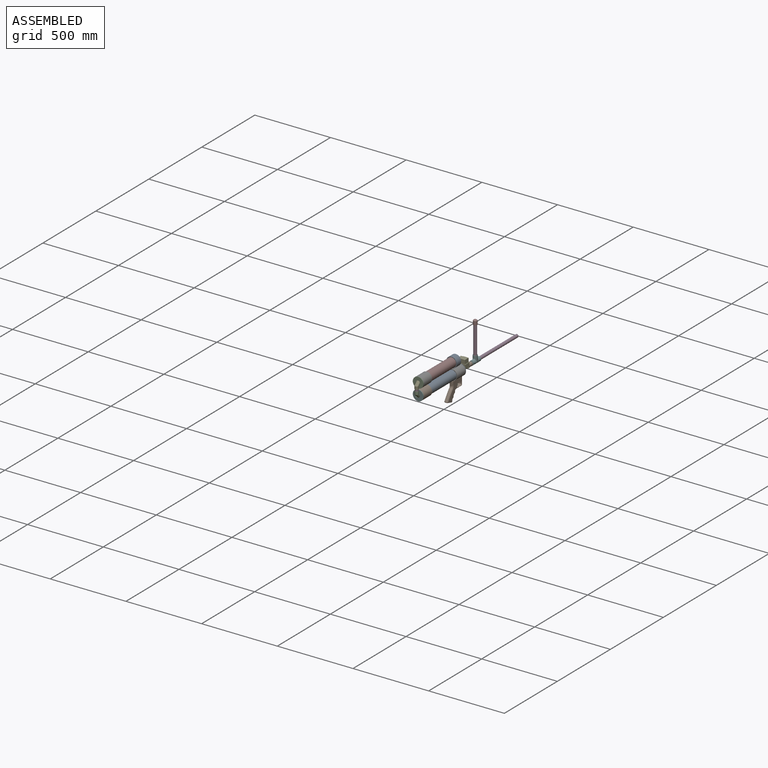
[diagram: assembled view]
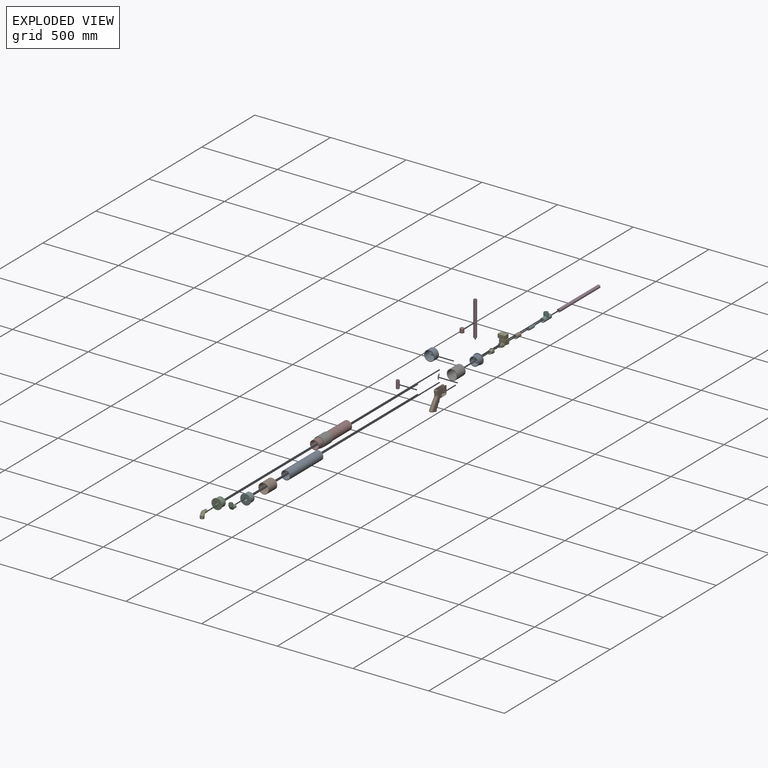
[diagram: exploded view]
GUIDED TOUR — MATED ASSEMBLY WITH SUBASSEMBLIES (Onshape document 58dd89611a7a290f81dffc46, AutoMate assembly 58dd89611a7a290f81dffc46_14fd3d186b81d240e03e2651_4bc097a1789fc63d27f42b45_default)

This assembly has 25 component occurrences arranged in 22 top-level units: 21 individual components plus 1 subassembly (S0). The tour has two levels: first the top level, where each subassembly is treated as one rigid unit; then each subassembly is toured internally in its own section (nesting deeper than one subassembly level is flattened into its subassembly's section).

Components are labeled P0..P24 across the whole record; subassembly units are labeled S0..S0. A mate is a constraint between two units; its type names the relative motion it leaves free:
  FASTENED — locks the two components together rigidly (no relative motion),
  PLANAR — leaves sliding in the plane through the listed point (normal = the listed direction) and rotation about that normal free,
  REVOLUTE — leaves rotation about the listed axis free (a hinge).
Axis/direction vectors are unit vectors and 'through' points are millimeter coordinates, both in the assembly's world frame.

TOP-LEVEL MATES (between units; each subassembly's internal mates are listed in its own section)
  1. FASTENED "Valve Coupler Fastener": P20 <-> S0, direction (0.000, -1.000, 0.000) through (-5.48, 219.71, -12.74) mm
  2. FASTENED "Coupler Fasten": P10 <-> P9, direction (0.000, 1.000, 0.000) through (-5.48, -190.03, -12.74) mm
  3. FASTENED "1/2" Reducer Fasten": P5 <-> P10, direction (0.000, 1.000, 0.000) through (-5.48, -232.09, -12.74) mm
  4. FASTENED "Bottom Elbow Tank Fastener": P21 <-> P5, direction (0.000, 1.000, 0.000) through (-5.48, -235.90, -12.74) mm
  5. FASTENED "Main Grip Fasten": P1 <-> P6, direction (0.000, 1.000, 0.000) through (4.52, 163.19, -44.74) mm
  6. FASTENED "Rear Cap Fasten": P19 <-> P8, direction (0.000, 1.000, 0.000) through (-5.48, 121.12, 63.46) mm
  7. FASTENED "Barrel1 Tee Fastener": P24 <-> P15, direction (0.000, 1.000, 0.000) through (-5.48, 289.56, -12.74) mm
  8. FASTENED "Tank Connector Fastener": P12 <-> P23, direction (0.000, 0.000, 1.000) through (-5.48, -248.60, 50.76) mm
  9. FASTENED "1/2" Reducer Fasten": P2 <-> P16, direction (0.000, 1.000, 0.000) through (-5.48, -232.09, 63.46) mm
  10. FASTENED "Top Elbow Tank Fastener": P23 <-> P2, direction (0.000, 1.000, 0.000) through (-5.48, -235.90, 63.46) mm
  11. FASTENED "Lower Tank Front Coupler Fasten": P9 <-> P6, direction (0.000, -1.000, 0.000) through (-5.48, 121.12, -12.74) mm
  12. FASTENED "Mag Tee Fastener": P3 <-> P15, direction (0.000, 0.000, -1.000) through (-5.48, 303.53, 1.55) mm
  13. FASTENED "2-3/4 Reducer Fasten": P0 <-> P6, direction (0.000, -1.000, 0.000) through (-5.48, 163.19, -12.74) mm
  14. FASTENED "Valve Tank Fastener": S0 <-> P13, direction (0.000, -1.000, 0.000) through (-5.48, 170.81, -12.74) mm
  15. FASTENED "3/4" reducer tank fastener": P13 <-> P0, direction (0.000, -1.000, 0.000) through (-5.48, 167.00, -12.74) mm
  16. FASTENED "Barrel2 Tee Fastener": P15 <-> P22, direction (0.000, 1.000, 0.000) through (-5.48, 317.50, -12.74) mm
  17. FASTENED "Mag Cap Fastener": P18 <-> P3, direction (0.000, 0.000, 1.000) through (-5.48, 303.53, 230.15) mm
  18. REVOLUTE "Trigger Revolute": P11 <-> P1, axis (1.000, 0.000, 0.000) through (-2.73, 137.19, -70.35) mm
  19. FASTENED "Coupler Fasten": P16 <-> P8, direction (0.000, 1.000, 0.000) through (-5.48, -190.03, 63.46) mm
  20. FASTENED "Barrel Coupler Fastener": P24 <-> P20, direction (0.000, -1.000, 0.000) through (-5.48, 238.76, -12.74) mm

TOP-LEVEL ASSEMBLY ORDER
  1. P6 — the base component [order heuristic]
  2. P0 — core [order heuristic]
  3. P2 — core [order heuristic]
  4. P23 — core [order heuristic]
  5. P13 — core [order heuristic]
  6. P12 — core [order heuristic]
  7. P16 — core [order heuristic]
  8. P8 — core [order heuristic]
  9. S0 — core [order heuristic]
  10. P20 — core [order heuristic]
  11. P24 — core [order heuristic]
  12. P9 — core [order heuristic]
  13. P15 — core [order heuristic]
  14. P10 — core [order heuristic]
  15. P5 — core [order heuristic]
  16. P21 — core [order heuristic]
  17. P1 [order verified]
  18. P11 [order verified]
  19. P3 [order verified]
  20. P19 [order verified]
  21. P18 [order verified]
  22. P22 [order verified]
(P11 verified with a relaxed clearance tolerance: the source model stores slight part interference there.)
Order-tag legend:
  [order verified] — this step's position reverses a verified removal order: the component was checked to insert without passing through the ones already placed.
  [order heuristic] — the first 16 components form the assembly's core: parts whose collision-free extraction could not be verified, listed in mate-graph order.

Of the 25 component occurrences, 5 carry the full construction recipe — the FeatureScript program that regenerates the part's solid from scratch; the rest are supplied as boundary geometry only. Each toured unit is shown spotlighted twice — assembled, then exploded with a leader line back to its socket (green = recipe-attached component, orange = geometry-only, blue = subassembly unit; the rest desaturated gray).
NOTE — this tour is split across 2 documents so each fits a 32k-token context. This is document 1: the component sections continue in the remaining 1 document, each repeating the header above.
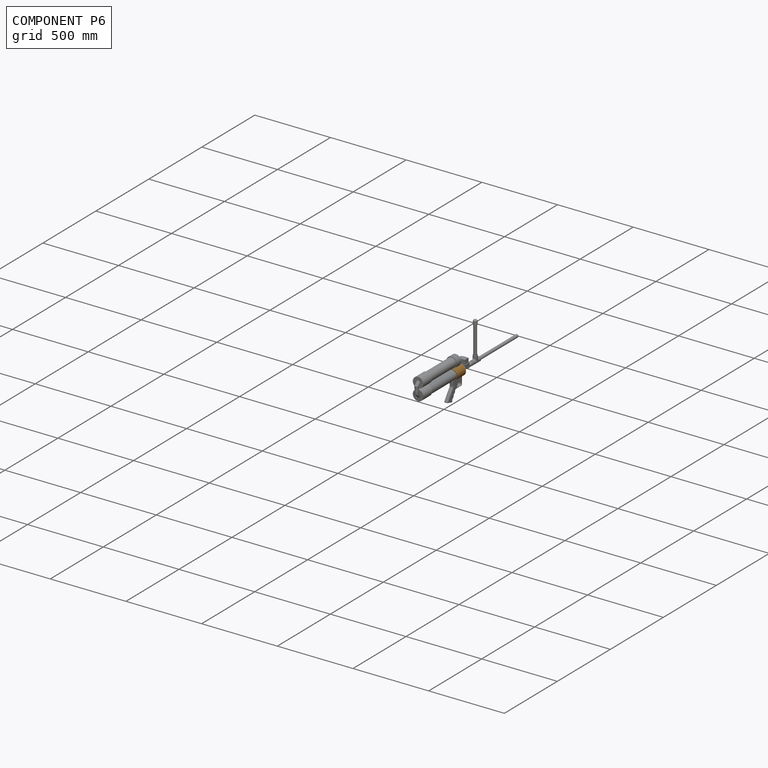
[diagram: component P6 — assembled]
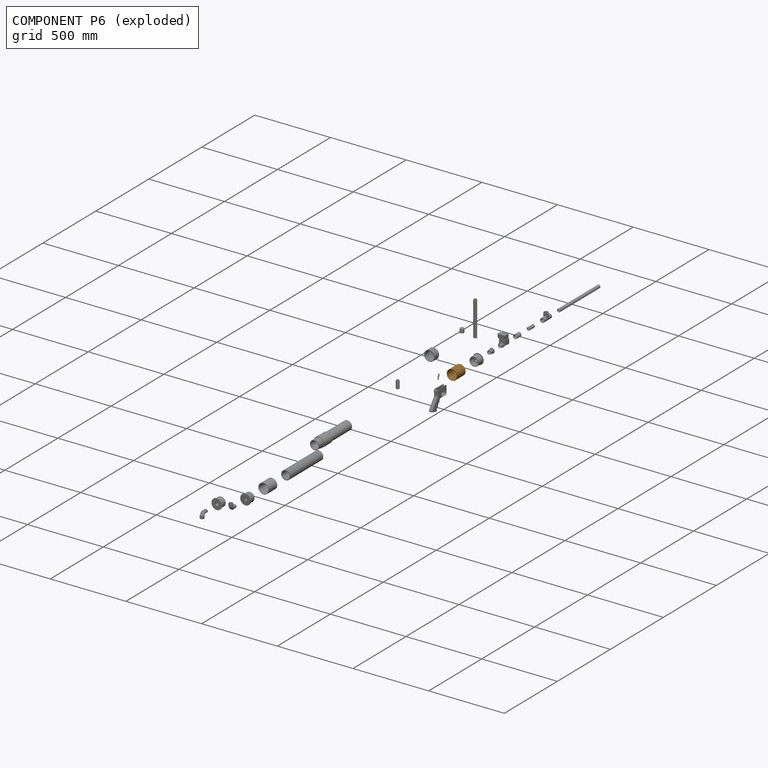
[diagram: component P6 — exploded]
COMPONENT P6 — geometry summary (no construction recipe available for this part):
  bounding box: 79.4 x 74.7 x 74.7 mm
  B-rep topology: 1 solid, 10 faces, 32 edges
  volume: 71558 mm^3 (16% of its bounding box)
  symmetry: 2-fold rotationally symmetric about the x axis; 2-fold rotationally symmetric about the y axis; revolution-symmetric about the z axis through its bounding-box center; mirror-symmetric across its x mid-plane, y mid-plane, z mid-plane
Held by: FASTENED mate "Main Grip Fasten" to P1; FASTENED mate "Lower Tank Front Coupler Fasten" to P9; FASTENED mate "2-3/4 Reducer Fasten" to P0.
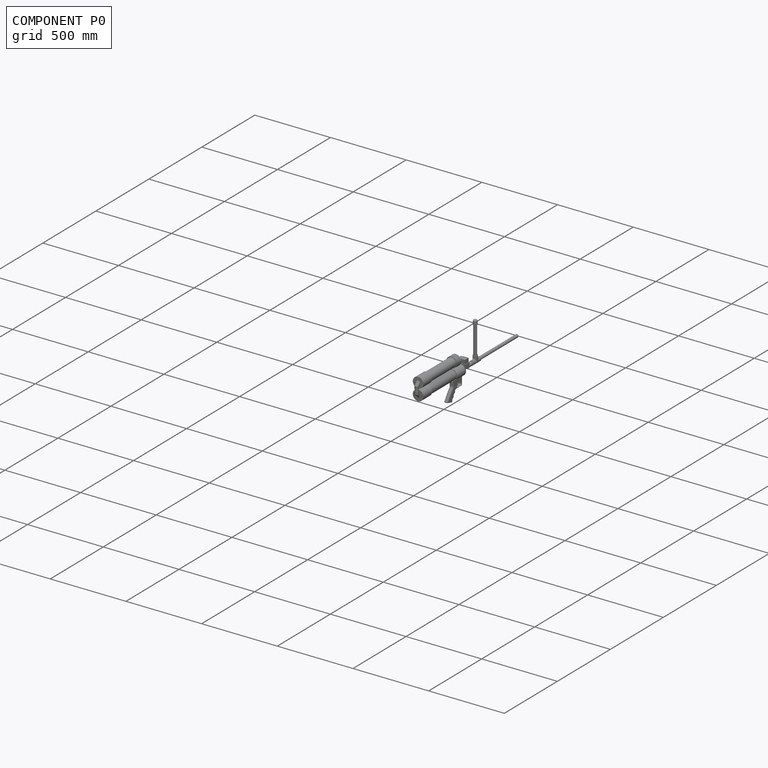
[diagram: component P0 — assembled]
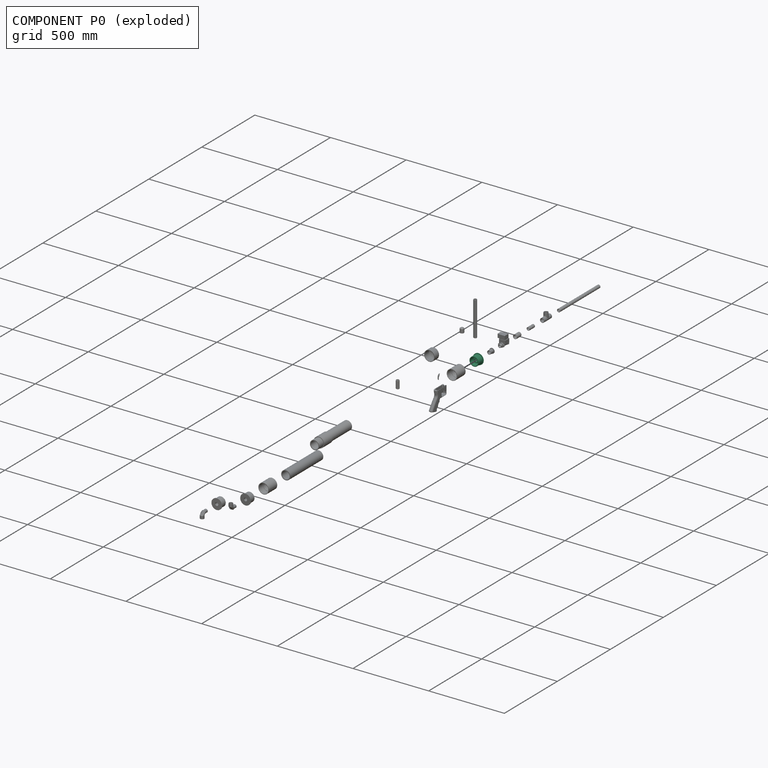
[diagram: component P0 — exploded]
COMPONENT P0 — recipe-attached (CADFS 00956761, mesh-verified: the recipe's output STEP matches this component's geometry to below the mesh-comparison resolution (tessellation chordal tolerance ~0.161 mm)).
Held by: FASTENED mate "2-3/4 Reducer Fasten" to P6; FASTENED mate "3/4" reducer tank fastener" to P13.
Construction recipe (FeatureScript — the CAD program that rebuilds this solid; sketch coordinates are in the units given by the * unit suffixes, e.g. mm):

FeatureScript 1511;
import(path : "onshape/std/geometry.fs", version : "1511.0");
import(path : "onshape/std/common.fs", version : "1511.0");
const mm = millimeter;
const VERTEX = EntityType.VERTEX;
const EDGE = EntityType.EDGE;
const FACE = EntityType.FACE;
const BODY = EntityType.BODY;
function v(x, y){return vector(x, y);}
function OD(order){return orderDisambiguation(order);}
function OSD(set){return originalSetDisambiguation(set);}
function TD(topology){return topologyDisambiguation(topology);}
function TDD(query){return trueDependencyDisambiguation(query);}
function sQuery(a, b, c) {return sketchEntityQuery(a, b, c);}

annotation { "Feature Type Name" : "Feature", "Feature Type Description" : "" }
export const myFeature = defineFeature(function(context is Context, id is Id, definition is map)
    precondition{}
    {
        {
            var Q0;
            Q0=qCreatedBy(makeId("Top.planeOp"),FACE);
            var sketch = newSketch(context, id + "F0", { "sketchPlane" : qUnion([Q0])});
            skCircle(sketch, "E0", {"center": v(0, 0) * mm, "radius": 34.93 * mm});
            skCircle(sketch, "E1", {"center": v(0, 0) * mm, "radius": 30.16 * mm});
            skCircle(sketch, "E2", {"center": v(0, 0) * mm, "radius": 25.4 * mm});
            skCircle(sketch, "E3", {"center": v(0, 0) * mm, "radius": 16.2 * mm});
            skCircle(sketch, "E4", {"center": v(0, 0) * mm, "radius": 9.53 * mm});
            skCircle(sketch, "E5", {"center": v(0, 0) * mm, "radius": 12.7 * mm});
            skLineSegment(sketch, "E6.left", {"start": v(2.22, 16.04) * mm, "end": v(2.22, 25.3) * mm});
            skLineSegment(sketch, "E6.right", {"start": v(-2.22, 16.04) * mm, "end": v(-2.22, 25.3) * mm});
            skPoint(sketch, "E6.middle", {"position": v(0, 20.67) * mm});
            skPoint(sketch, "E7.1.0", {"position": v(-17.9, -10.34) * mm});
            skLineSegment(sketch, "E7.1.1", {"start": v(-12.78, -9.94) * mm, "end": v(-20.8, -14.58) * mm});
            skLineSegment(sketch, "E7.1.2", {"start": v(-15, -6.1) * mm, "end": v(-23.02, -10.73) * mm});
            skPoint(sketch, "E7.2.0", {"position": v(17.9, -10.34) * mm});
            skLineSegment(sketch, "E7.2.1", {"start": v(15, -6.1) * mm, "end": v(23.02, -10.73) * mm});
            skLineSegment(sketch, "E7.2.2", {"start": v(12.78, -9.94) * mm, "end": v(20.8, -14.58) * mm});
            skSolve(sketch);
        }
        {
            var Q0;
            Q0=makeQuery(id+"F0.imprint","IMPRINT",FACE,{"disambiguationData":[TD([[makeQuery(id+"F0.imprint","IMPRINT",EDGE,{"derivedFrom":sQuery(id+"F0.wireOp",EDGE,"E0")}),1.0]])]});
            extrude(context, id + "F1", {"entities" : qUnion([Q0]), "depth" : 3.8 * mm});
        }
        {
            var Q0;
            Q0=makeQuery(id+"F0.imprint","IMPRINT",FACE,{"disambiguationData":[TD([[makeQuery(id+"F0.imprint","IMPRINT",EDGE,{"derivedFrom":sQuery(id+"F0.wireOp",EDGE,"E1")}),1.0]])]});
            extrude(context, id + "F2", {"entities" : qUnion([Q0]), "operationType" : NewBodyOperationType.ADD, "depth" : 41.9 * mm});
        }
        {
            var Q0;
            {var subQ0=sQuery(id+"F0.wireOp",EDGE,"E6.left");Q0=makeQuery(id+"F0.imprint","IMPRINT",FACE,{"disambiguationData":[TD([[makeQuery(id+"F0.imprint","IMPRINT",EDGE,{"derivedFrom":subQ0}),-1.0]])]});}
            var Q1;
            {var subQ0=sQuery(id+"F0.wireOp",EDGE,"E6.right");Q1=makeQuery(id+"F0.imprint","IMPRINT",FACE,{"disambiguationData":[TD([[makeQuery(id+"F0.imprint","IMPRINT",EDGE,{"derivedFrom":subQ0}),1.0]])]});}
            var Q2;
            {var subQ0=sQuery(id+"F0.wireOp",EDGE,"E7.1.1");Q2=makeQuery(id+"F0.imprint","IMPRINT",FACE,{"disambiguationData":[TD([[makeQuery(id+"F0.imprint","IMPRINT",EDGE,{"derivedFrom":subQ0}),1.0]])]});}
            extrude(context, id + "F3", {"entities" : qUnion([Q0, Q1, Q2]), "operationType" : NewBodyOperationType.ADD, "depth" : 3.8 * mm, "offsetDistance" : 25.4 * mm});
        }
        {
            var Q0;
            {var subQ0=sQuery(id+"F0.wireOp",EDGE,"E6.left");Q0=makeQuery(id+"F0.imprint","IMPRINT",FACE,{"disambiguationData":[TD([[makeQuery(id+"F0.imprint","IMPRINT",EDGE,{"derivedFrom":subQ0}),1.0]])]});}
            var Q1;
            {var subQ0=sQuery(id+"F0.wireOp",EDGE,"E7.2.1");Q1=makeQuery(id+"F0.imprint","IMPRINT",FACE,{"disambiguationData":[TD([[makeQuery(id+"F0.imprint","IMPRINT",EDGE,{"derivedFrom":subQ0}),-1.0]])]});}
            var Q2;
            {var subQ0=sQuery(id+"F0.wireOp",EDGE,"E7.1.1");Q2=makeQuery(id+"F0.imprint","IMPRINT",FACE,{"disambiguationData":[TD([[makeQuery(id+"F0.imprint","IMPRINT",EDGE,{"derivedFrom":subQ0}),-1.0]])]});}
            extrude(context, id + "F4", {"entities" : qUnion([Q0, Q1, Q2]), "operationType" : NewBodyOperationType.ADD, "depth" : 20.95 * mm, "offsetDistance" : 25.4 * mm});
        }
        {
            var Q0;
            Q0=makeQuery(id+"F0.imprint","IMPRINT",FACE,{"disambiguationData":[TD([[makeQuery(id+"F0.imprint","IMPRINT",EDGE,{"derivedFrom":sQuery(id+"F0.wireOp",EDGE,"E5")}),-1.0]])]});
            extrude(context, id + "F5", {"entities" : qUnion([Q0]), "operationType" : NewBodyOperationType.ADD, "depth" : 25.4 * mm});
        }
        {
            var Q0;
            Q0=makeQuery(id+"F0.imprint","IMPRINT",FACE,{"disambiguationData":[TD([[makeQuery(id+"F0.imprint","IMPRINT",EDGE,{"derivedFrom":sQuery(id+"F0.wireOp",EDGE,"E4")}),-1.0]])]});
            extrude(context, id + "F6", {"entities" : qUnion([Q0]), "operationType" : NewBodyOperationType.ADD, "depth" : 25.4 * mm, "offsetDistance" : 25.4 * mm});
        }
        {
            var Q0;
            Q0=makeQuery(id+"F0.imprint","IMPRINT",FACE,{"disambiguationData":[TD([[makeQuery(id+"F0.imprint","IMPRINT",EDGE,{"derivedFrom":sQuery(id+"F0.wireOp",EDGE,"E4")}),-1.0]])]});
            extrude(context, id + "F7", {"entities" : qUnion([Q0]), "operationType" : NewBodyOperationType.REMOVE, "depth" : 21.59 * mm});
        }
        {
            var Q0;
            Q0=makeQuery(id+"F5.opExtrude","CAP_EDGE",EDGE,{"disambiguationData":[OSD([sQuery(id+"F0.wireOp",EDGE,"E3")])],"isStart":false});
            var Q1;
            Q1=makeQuery(id+"F4.opExtrude","CAP_EDGE",EDGE,{"disambiguationData":[OSD([sQuery(id+"F0.wireOp",EDGE,"E6.right")])],"isStart":false});
            var Q2;
            Q2=makeQuery(id+"F4.opExtrude","CAP_EDGE",EDGE,{"disambiguationData":[OSD([sQuery(id+"F0.wireOp",EDGE,"E6.left")])],"isStart":false});
            var Q3;
            Q3=makeQuery(id+"F4.opExtrude","CAP_EDGE",EDGE,{"disambiguationData":[OSD([sQuery(id+"F0.wireOp",EDGE,"E7.1.1")])],"isStart":false});
            var Q4;
            Q4=makeQuery(id+"F4.opExtrude","CAP_EDGE",EDGE,{"disambiguationData":[OSD([sQuery(id+"F0.wireOp",EDGE,"E7.1.2")])],"isStart":false});
            var Q5;
            Q5=makeQuery(id+"F4.opExtrude","CAP_EDGE",EDGE,{"disambiguationData":[OSD([sQuery(id+"F0.wireOp",EDGE,"E7.2.1")])],"isStart":false});
            var Q6;
            Q6=makeQuery(id+"F4.opExtrude","CAP_EDGE",EDGE,{"disambiguationData":[OSD([sQuery(id+"F0.wireOp",EDGE,"E7.2.2")])],"isStart":false});
            fillet(context, id + "F8", {"entities" : qUnion([Q0, Q1, Q2, Q3, Q4, Q5, Q6]), "radius" : 2.54 * mm, "tangentPropagation" : true, "allowEdgeOverflow" : false});
        }
    });
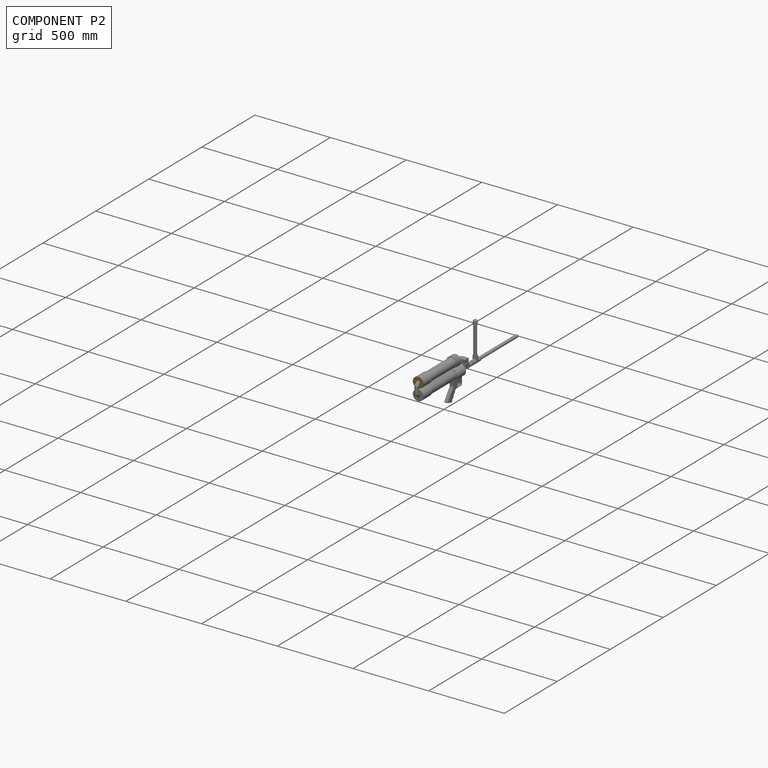
[diagram: component P2 — assembled]
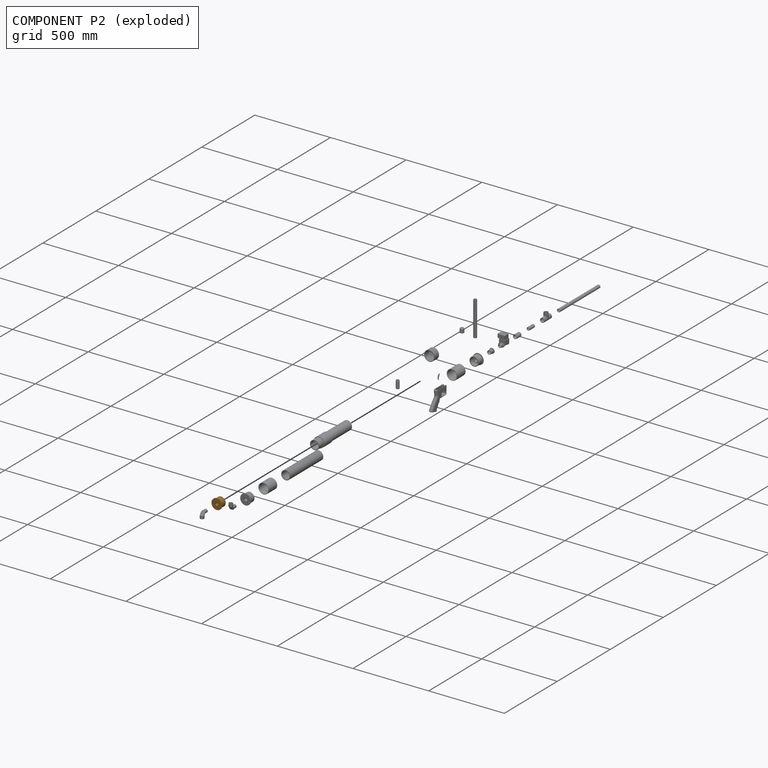
[diagram: component P2 — exploded]
COMPONENT P2 — geometry summary (no construction recipe available for this part):
  bounding box: 69.9 x 69.9 x 41.9 mm
  B-rep topology: 1 solid, 27 faces, 130 edges
  volume: 54525 mm^3 (27% of its bounding box)
  symmetry: 3-fold rotationally symmetric about the z axis; mirror-symmetric across its x mid-plane
Held by: FASTENED mate "1/2" Reducer Fasten" to P16; FASTENED mate "Top Elbow Tank Fastener" to P23.
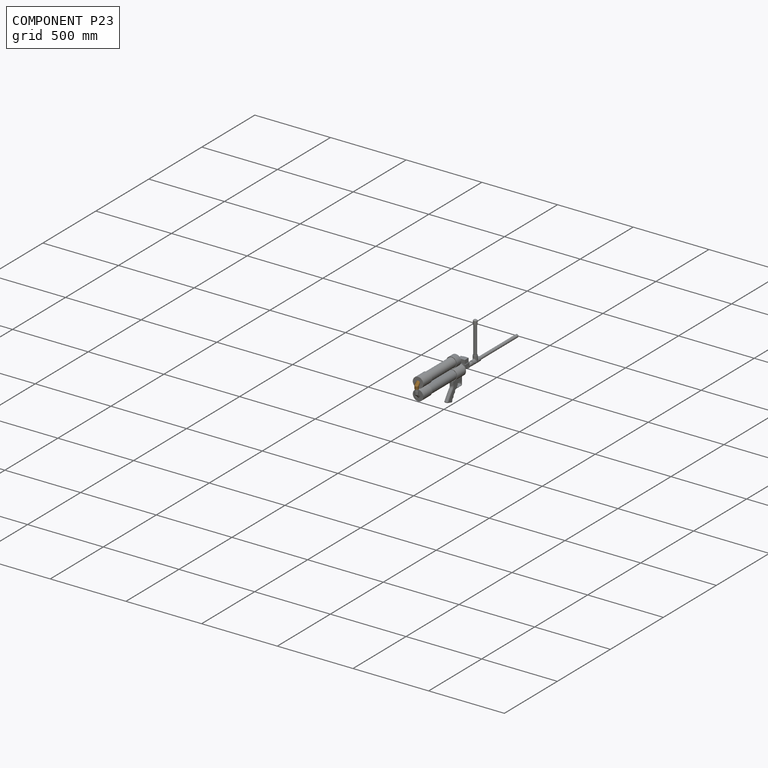
[diagram: component P23 — assembled]
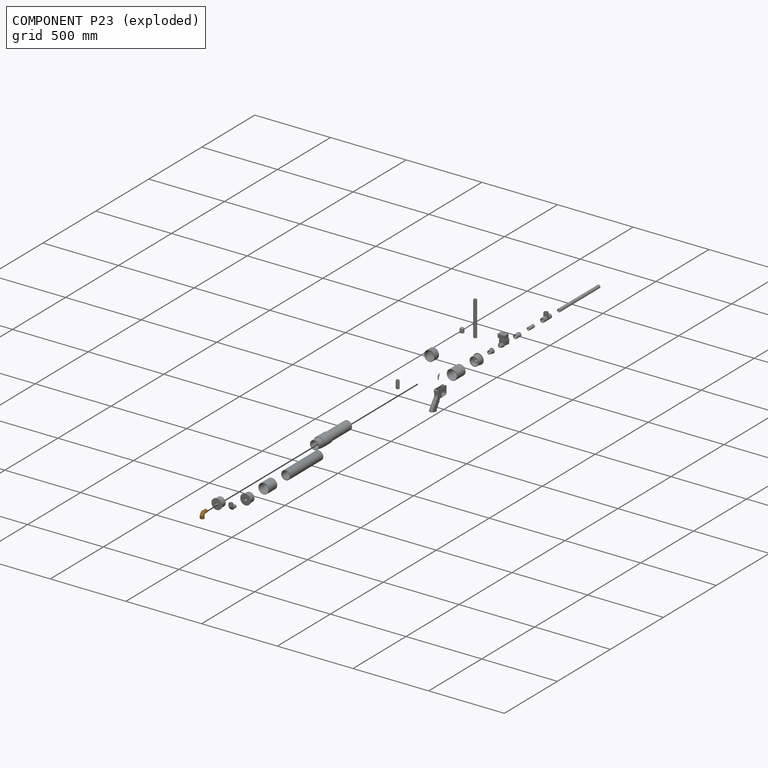
[diagram: component P23 — exploded]
COMPONENT P23 — geometry summary (no construction recipe available for this part):
  bounding box: 52.9 x 46.5 x 25.4 mm
  B-rep topology: 1 solid, 11 faces, 36 edges
  volume: 11736 mm^3 (19% of its bounding box)
  symmetry: mirror-symmetric across its y mid-plane
Held by: FASTENED mate "Tank Connector Fastener" to P12; FASTENED mate "Top Elbow Tank Fastener" to P2.
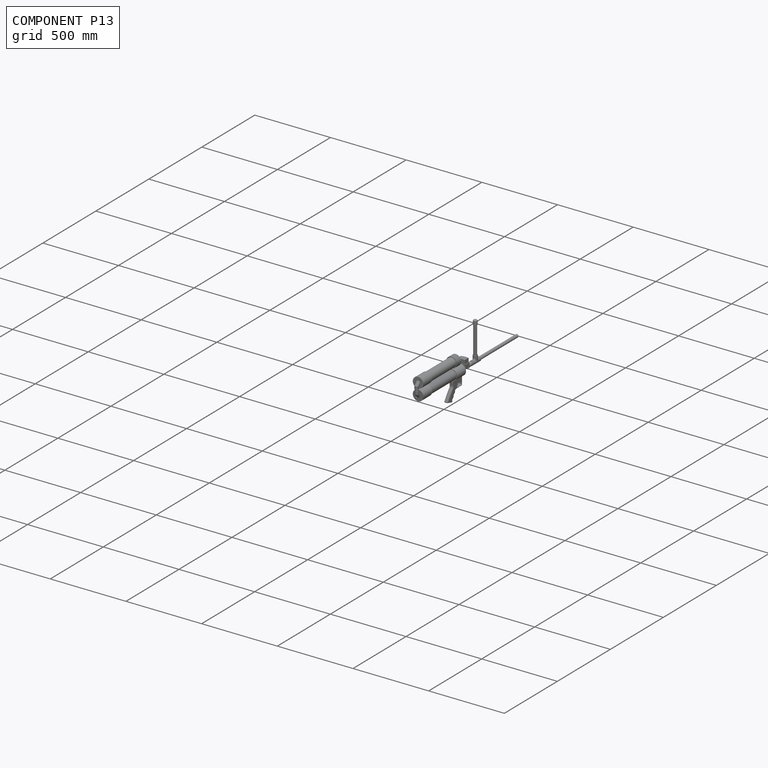
[diagram: component P13 — assembled]
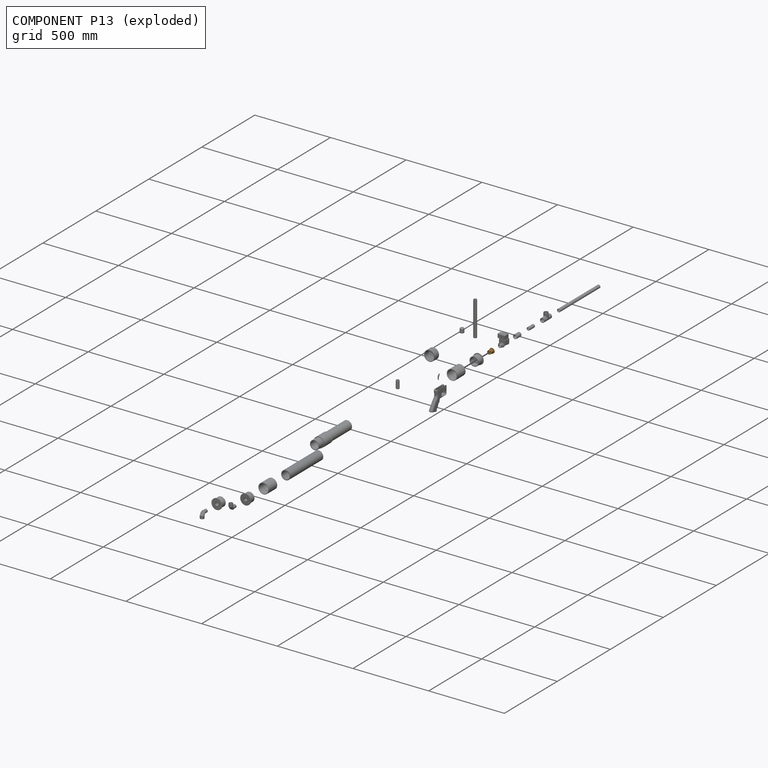
[diagram: component P13 — exploded]
COMPONENT P13 — geometry summary (no construction recipe available for this part):
  bounding box: 33.3 x 33.3 x 29.2 mm
  B-rep topology: 1 solid, 6 faces, 18 edges
  volume: 5502 mm^3 (17% of its bounding box)
  symmetry: revolution-symmetric about the z axis through its bounding-box center; mirror-symmetric across its x mid-plane, y mid-plane
Held by: FASTENED mate "Valve Tank Fastener" to P4; FASTENED mate "3/4" reducer tank fastener" to P0.
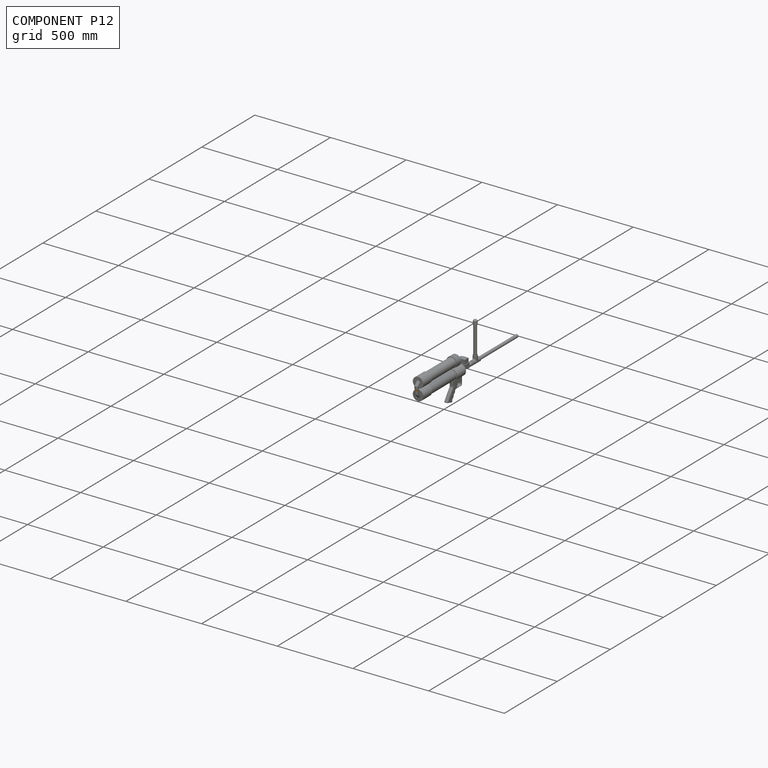
[diagram: component P12 — assembled]
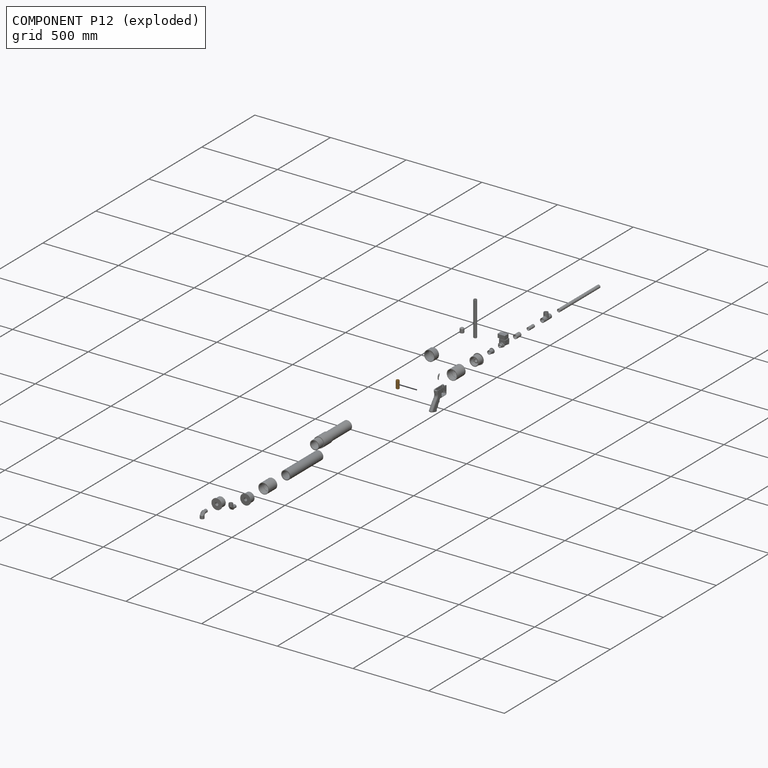
[diagram: component P12 — exploded]
COMPONENT P12 — geometry summary (no construction recipe available for this part):
  bounding box: 50.8 x 21.0 x 21.0 mm
  B-rep topology: 1 solid, 6 faces, 20 edges
  volume: 8533 mm^3 (38% of its bounding box)
  symmetry: 2-fold rotationally symmetric about the x axis; 2-fold rotationally symmetric about the y axis; revolution-symmetric about the z axis through its bounding-box center; mirror-symmetric across its x mid-plane, y mid-plane, z mid-plane
Held by: FASTENED mate "Tank Connector Fastener" to P23.
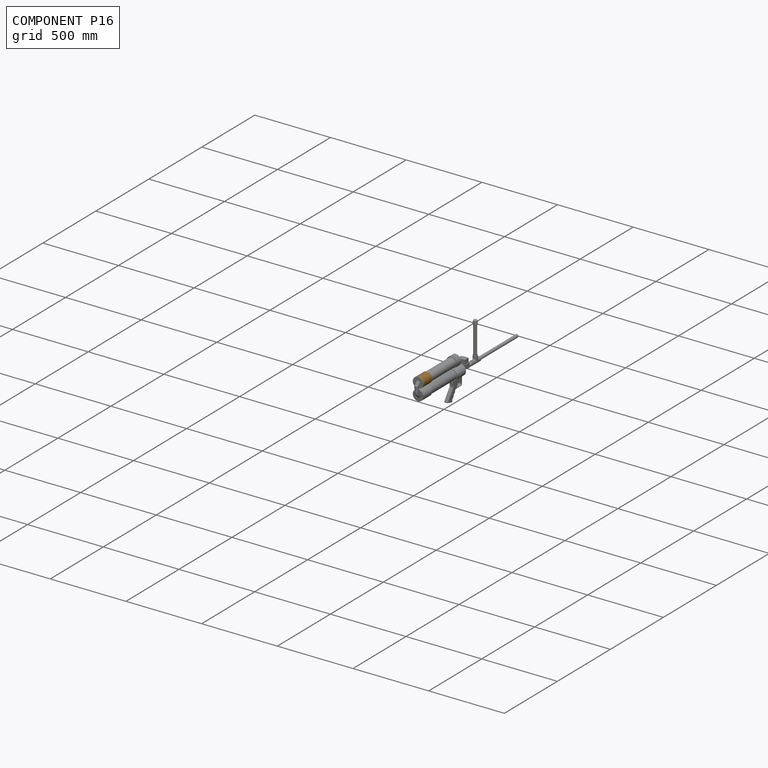
[diagram: component P16 — assembled]
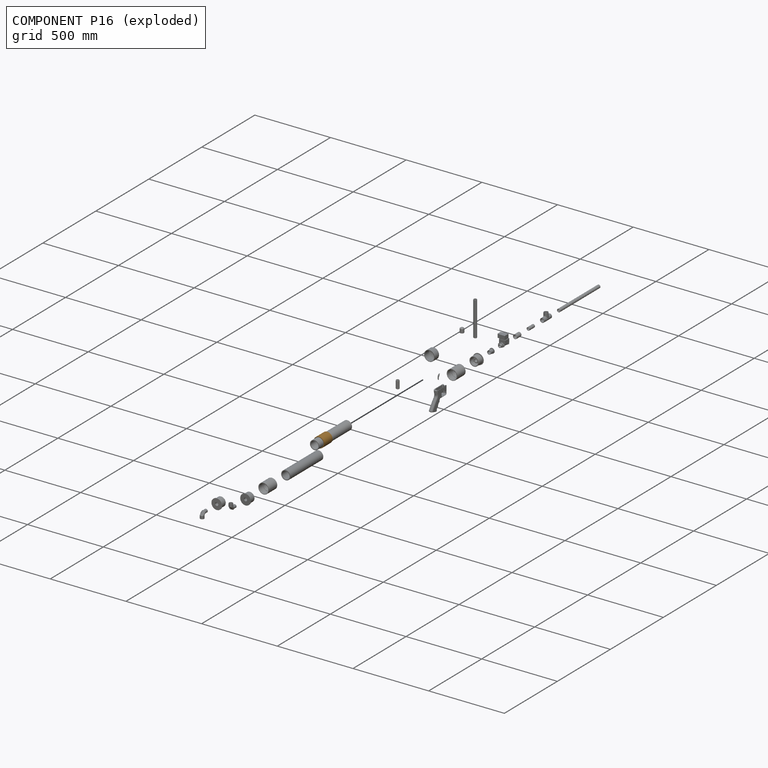
[diagram: component P16 — exploded]
COMPONENT P16 — geometry summary (no construction recipe available for this part):
  bounding box: 79.4 x 74.7 x 74.7 mm
  B-rep topology: 1 solid, 10 faces, 32 edges
  volume: 71558 mm^3 (16% of its bounding box)
  symmetry: 2-fold rotationally symmetric about the x axis; 2-fold rotationally symmetric about the y axis; revolution-symmetric about the z axis through its bounding-box center; mirror-symmetric across its x mid-plane, y mid-plane, z mid-plane
Held by: FASTENED mate "1/2" Reducer Fasten" to P2; FASTENED mate "Coupler Fasten" to P8.
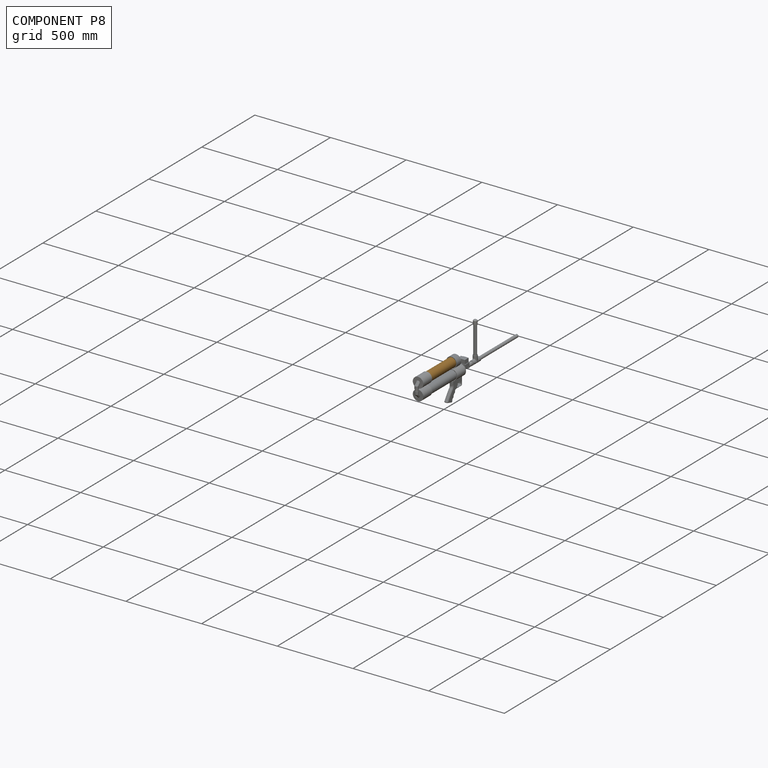
[diagram: component P8 — assembled]
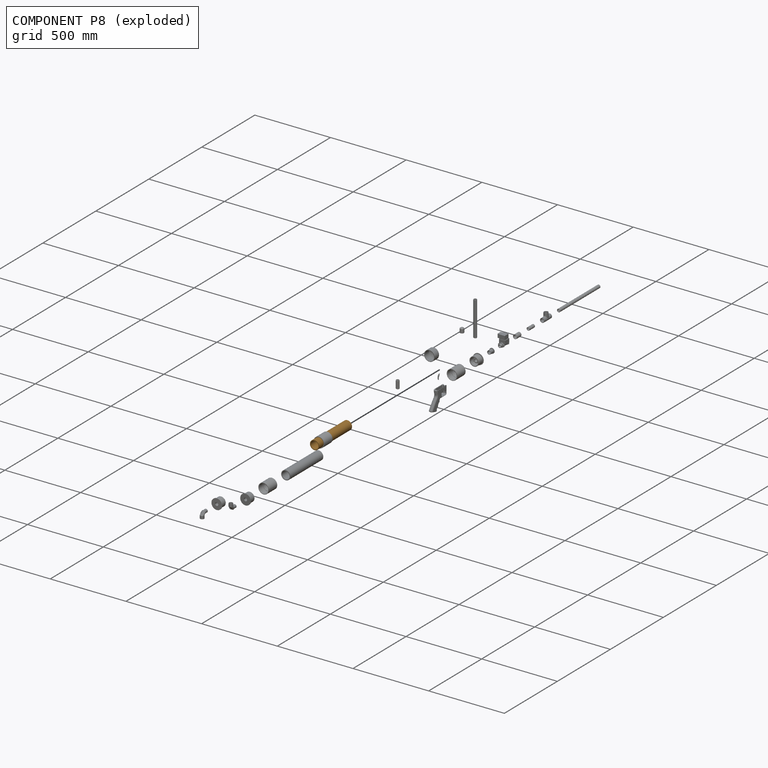
[diagram: component P8 — exploded]
COMPONENT P8 — geometry summary (no construction recipe available for this part):
  bounding box: 311.2 x 60.3 x 60.3 mm
  B-rep topology: 1 solid, 4 faces, 12 edges
  volume: 258664 mm^3 (23% of its bounding box)
  symmetry: 2-fold rotationally symmetric about the x axis; 2-fold rotationally symmetric about the y axis; revolution-symmetric about the z axis through its bounding-box center; mirror-symmetric across its x mid-plane, y mid-plane, z mid-plane
Held by: FASTENED mate "Rear Cap Fasten" to P19; FASTENED mate "Coupler Fasten" to P16.
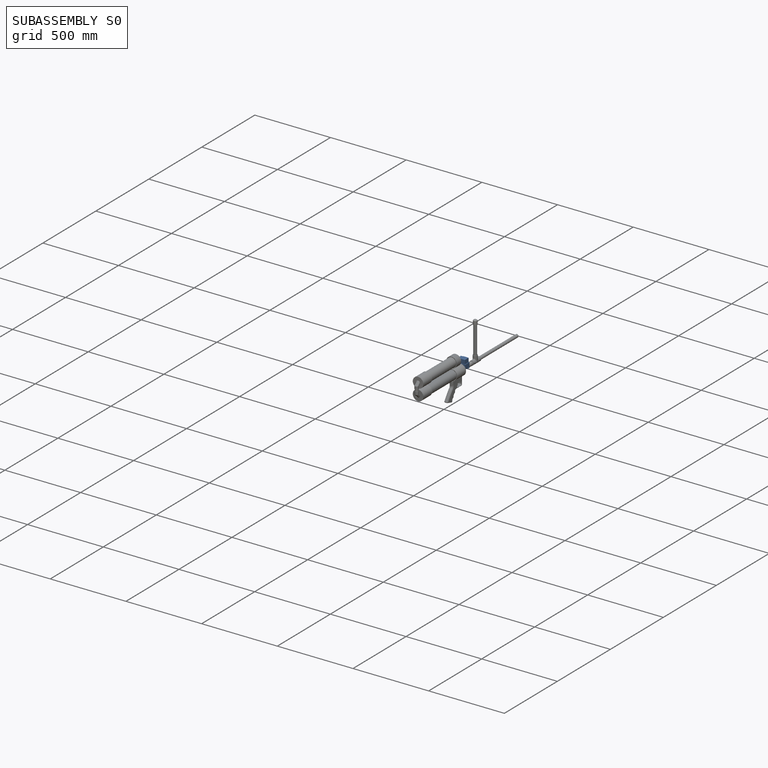
[diagram: subassembly S0 — assembled]
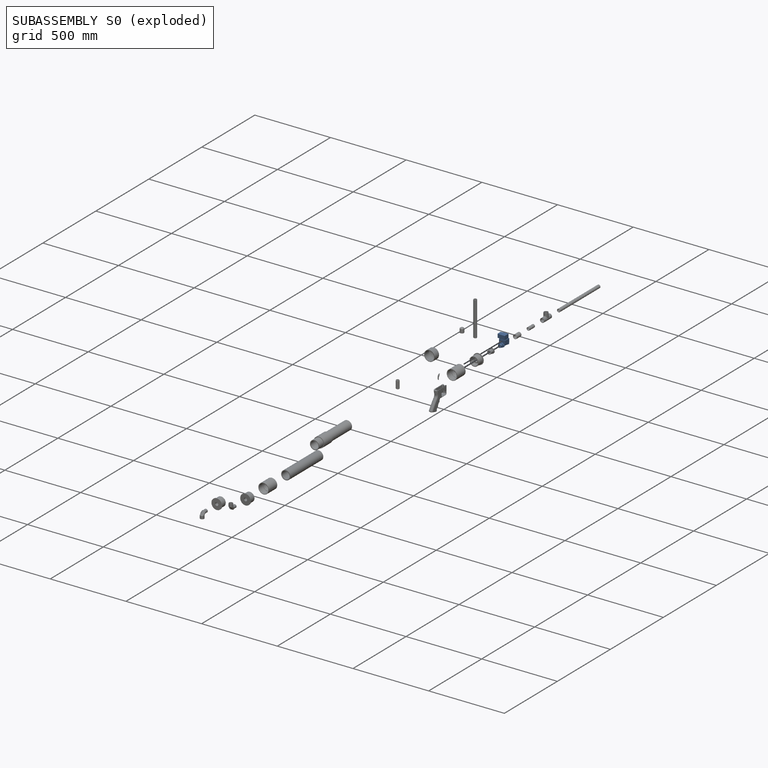
[diagram: subassembly S0 — exploded]
SUBASSEMBLY S0 — 4 components (P4, P7, P14, P17), of which 0 recipe-attached; toured below.
Held by: FASTENED mate "Valve Coupler Fastener" to P20; FASTENED mate "Valve Tank Fastener" to P13.
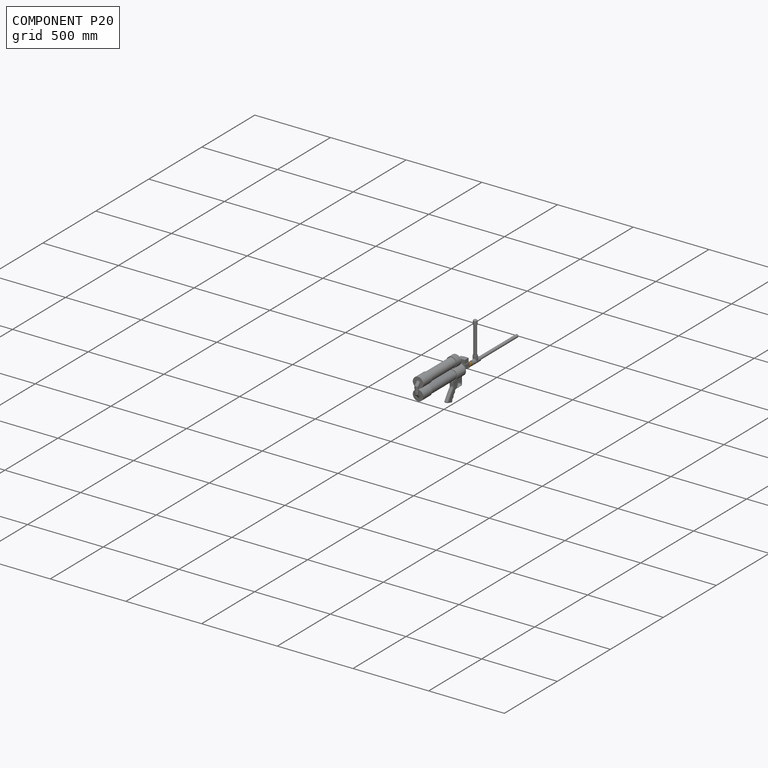
[diagram: component P20 — assembled]
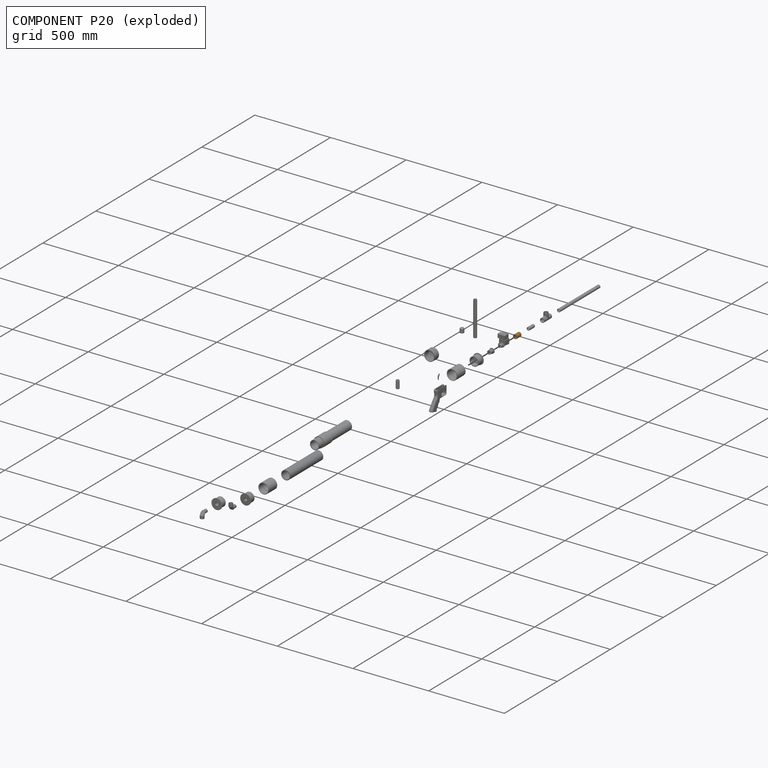
[diagram: component P20 — exploded]
COMPONENT P20 — geometry summary (no construction recipe available for this part):
  bounding box: 41.3 x 28.1 x 28.1 mm
  B-rep topology: 1 solid, 12 faces, 40 edges
  volume: 9344 mm^3 (29% of its bounding box)
  symmetry: revolution-symmetric about the z axis through its bounding-box center; mirror-symmetric across its x mid-plane, y mid-plane
Held by: FASTENED mate "Valve Coupler Fastener" to P4; FASTENED mate "Barrel Coupler Fastener" to P24.
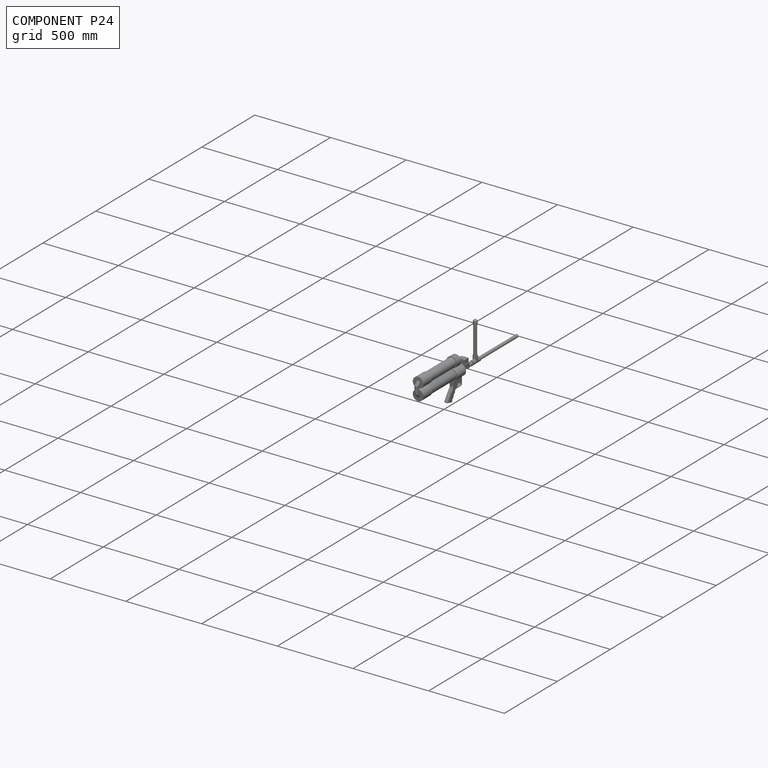
[diagram: component P24 — assembled]
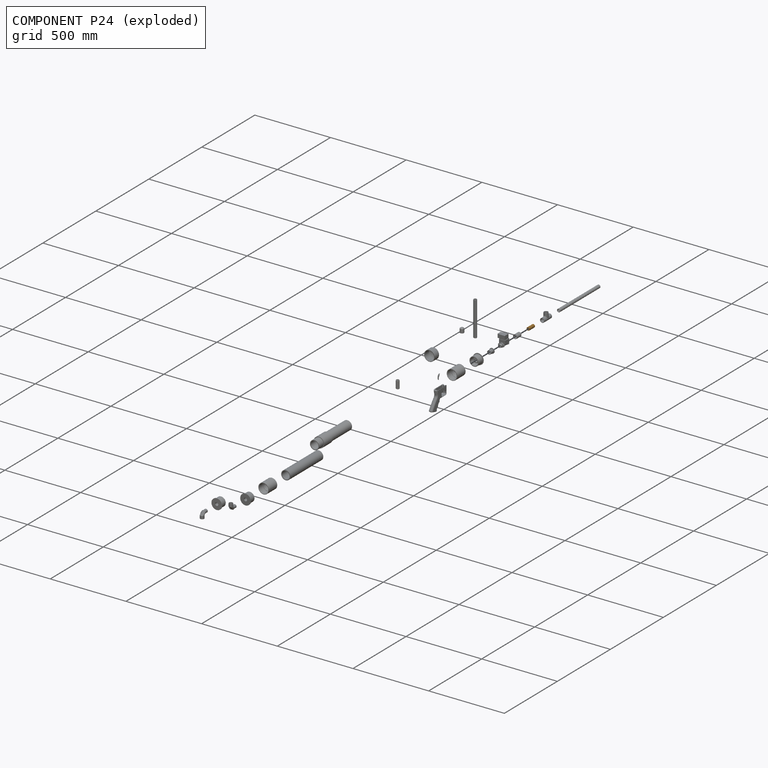
[diagram: component P24 — exploded]
COMPONENT P24 — geometry summary (no construction recipe available for this part):
  bounding box: 50.8 x 21.0 x 21.0 mm
  B-rep topology: 1 solid, 6 faces, 20 edges
  volume: 8533 mm^3 (38% of its bounding box)
  symmetry: 2-fold rotationally symmetric about the x axis; 2-fold rotationally symmetric about the y axis; revolution-symmetric about the z axis through its bounding-box center; mirror-symmetric across its x mid-plane, y mid-plane, z mid-plane
Held by: FASTENED mate "Barrel1 Tee Fastener" to P15; FASTENED mate "Barrel Coupler Fastener" to P20.
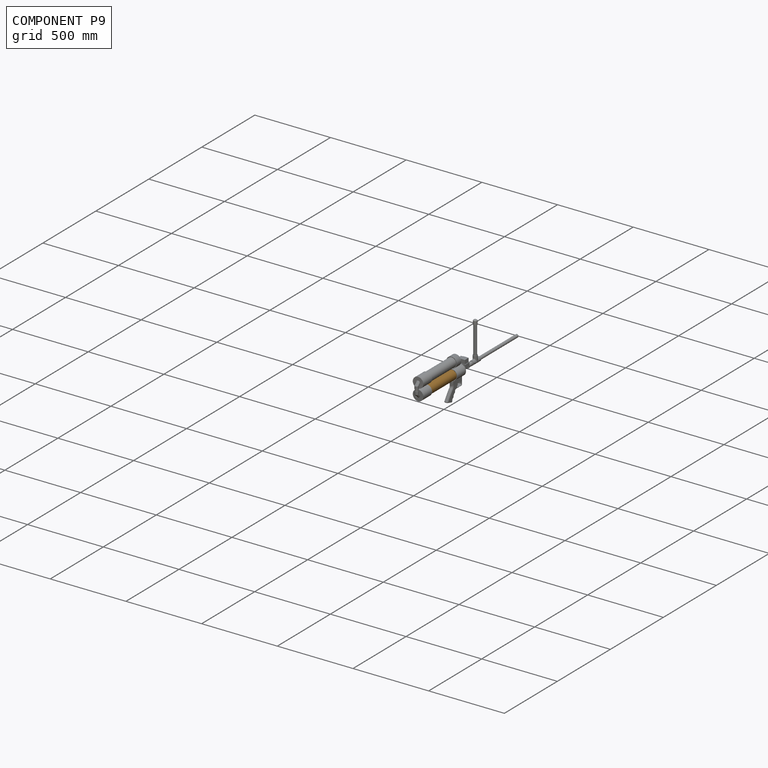
[diagram: component P9 — assembled]
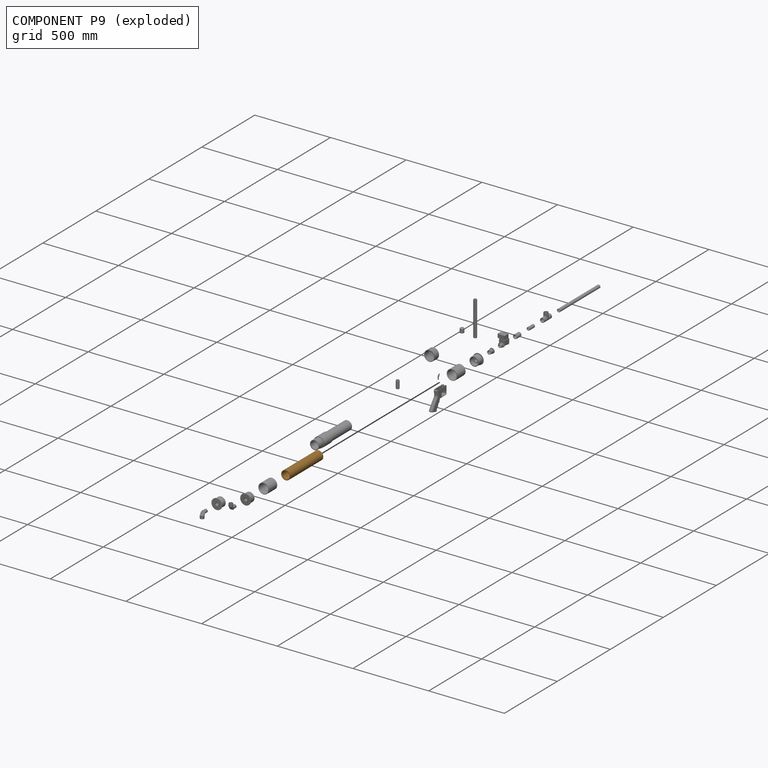
[diagram: component P9 — exploded]
COMPONENT P9 — geometry summary (no construction recipe available for this part):
  bounding box: 311.2 x 60.3 x 60.3 mm
  B-rep topology: 1 solid, 4 faces, 12 edges
  volume: 258664 mm^3 (23% of its bounding box)
  symmetry: 2-fold rotationally symmetric about the x axis; 2-fold rotationally symmetric about the y axis; revolution-symmetric about the z axis through its bounding-box center; mirror-symmetric across its x mid-plane, y mid-plane, z mid-plane
Held by: FASTENED mate "Coupler Fasten" to P10; FASTENED mate "Lower Tank Front Coupler Fasten" to P6.
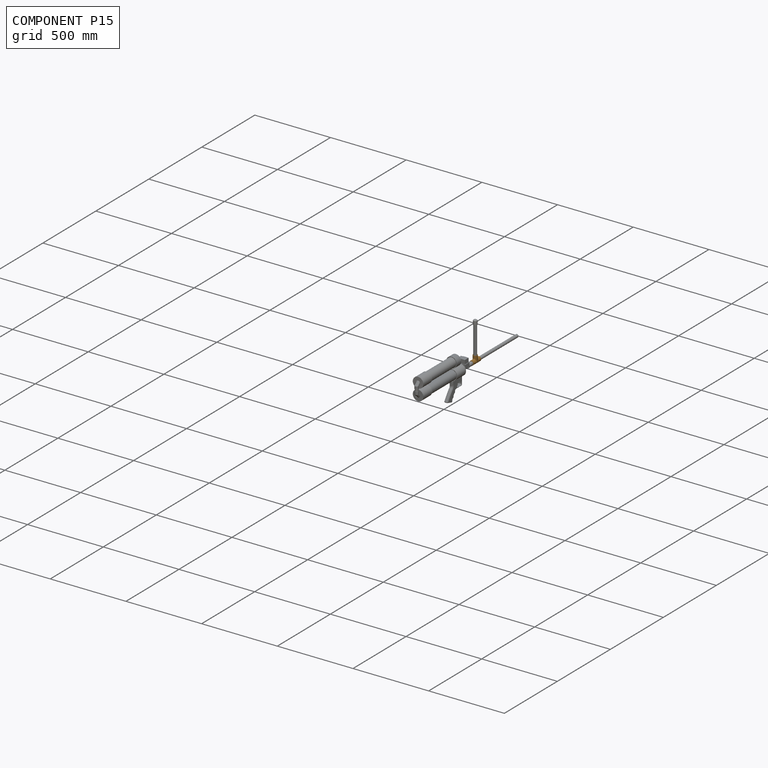
[diagram: component P15 — assembled]
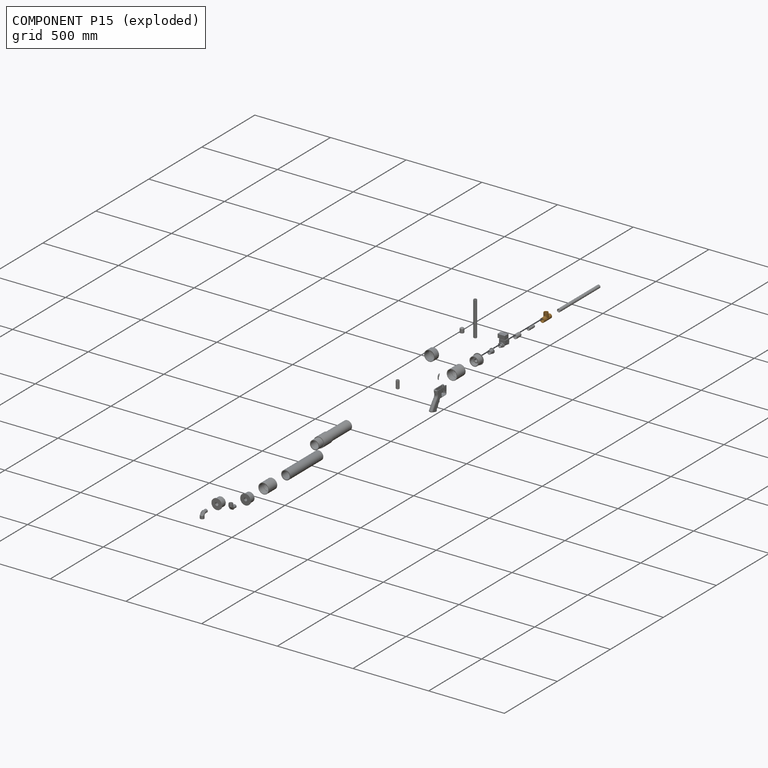
[diagram: component P15 — exploded]
COMPONENT P15 — geometry summary (no construction recipe available for this part):
  bounding box: 72.4 x 50.8 x 28.6 mm
  B-rep topology: 1 solid, 20 faces, 94 edges
  volume: 27988 mm^3 (27% of its bounding box)
Held by: FASTENED mate "Barrel1 Tee Fastener" to P24; FASTENED mate "Mag Tee Fastener" to P3; FASTENED mate "Barrel2 Tee Fastener" to P22.
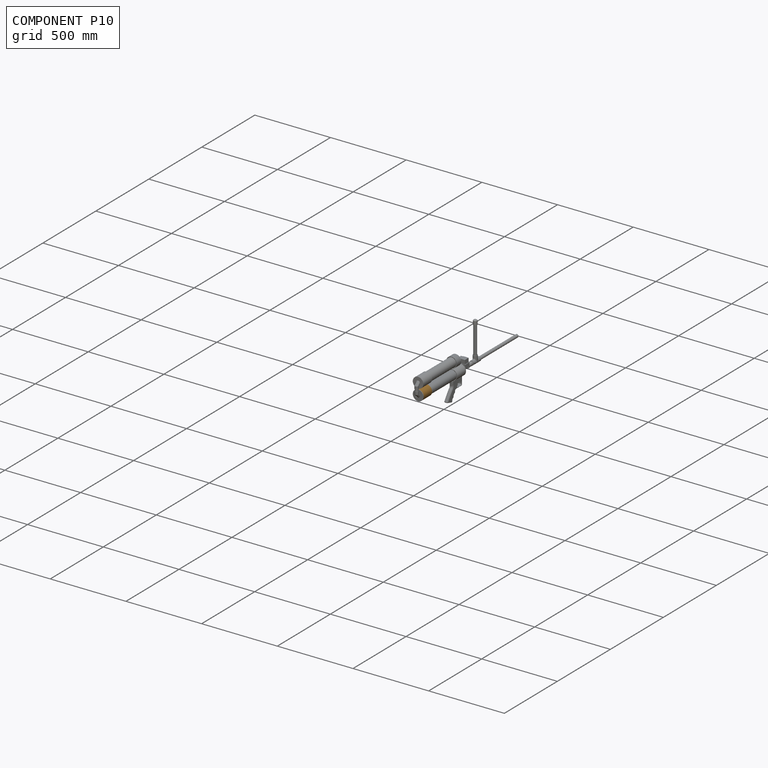
[diagram: component P10 — assembled]
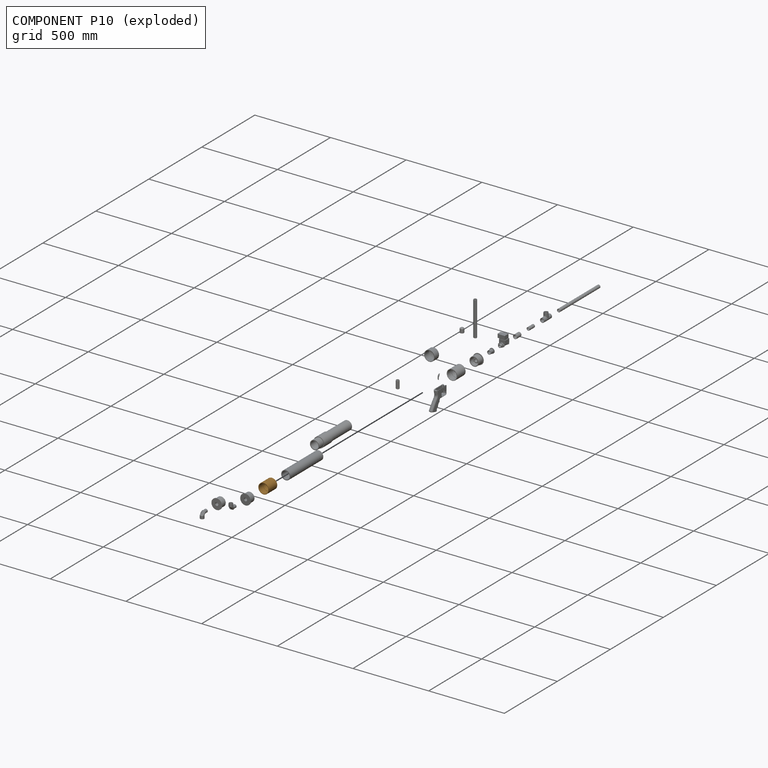
[diagram: component P10 — exploded]
COMPONENT P10 — geometry summary (no construction recipe available for this part):
  bounding box: 79.4 x 74.7 x 74.7 mm
  B-rep topology: 1 solid, 10 faces, 32 edges
  volume: 71558 mm^3 (16% of its bounding box)
  symmetry: 2-fold rotationally symmetric about the x axis; 2-fold rotationally symmetric about the y axis; revolution-symmetric about the z axis through its bounding-box center; mirror-symmetric across its x mid-plane, y mid-plane, z mid-plane
Held by: FASTENED mate "Coupler Fasten" to P9; FASTENED mate "1/2" Reducer Fasten" to P5.
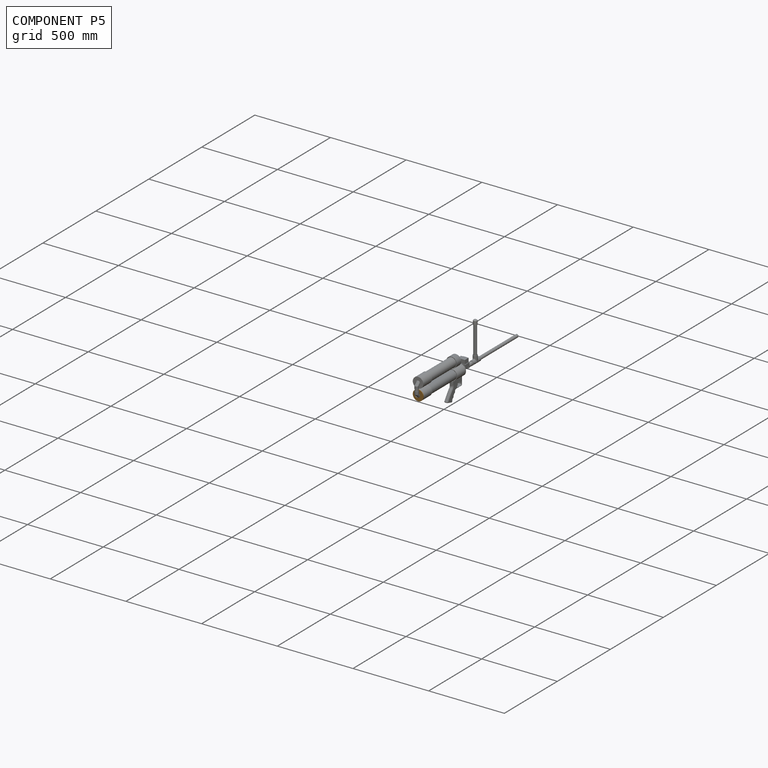
[diagram: component P5 — assembled]
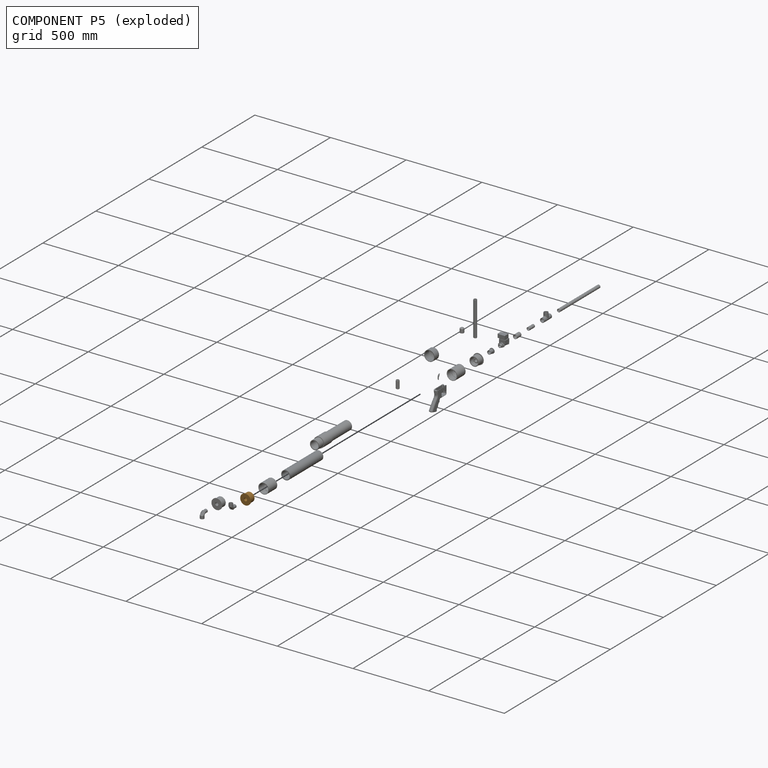
[diagram: component P5 — exploded]
COMPONENT P5 — geometry summary (no construction recipe available for this part):
  bounding box: 69.9 x 69.9 x 41.9 mm
  B-rep topology: 1 solid, 27 faces, 130 edges
  volume: 54525 mm^3 (27% of its bounding box)
  symmetry: 3-fold rotationally symmetric about the z axis; mirror-symmetric across its x mid-plane
Held by: FASTENED mate "1/2" Reducer Fasten" to P10; FASTENED mate "Bottom Elbow Tank Fastener" to P21.
